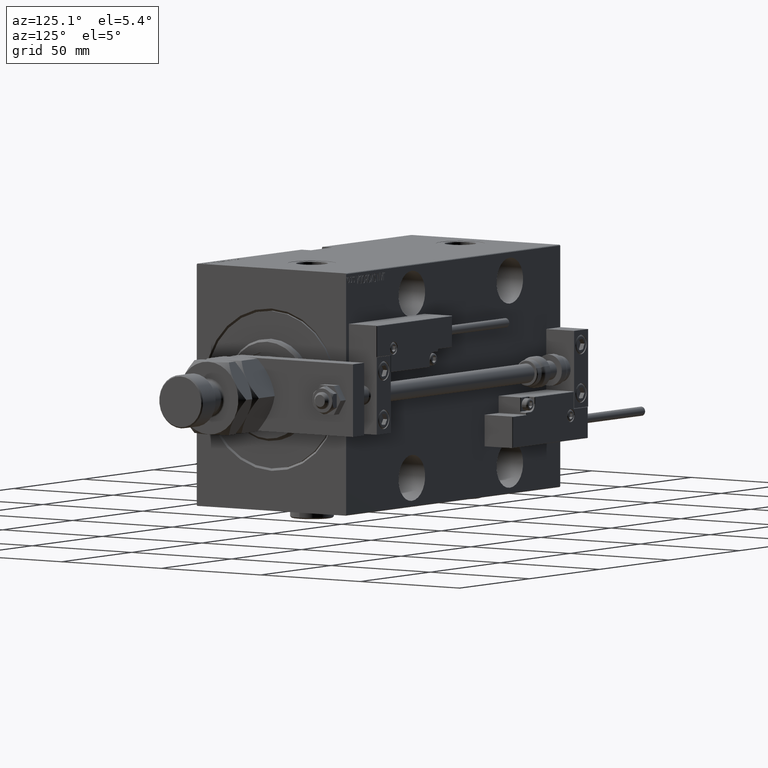
[diagram: clean part render]
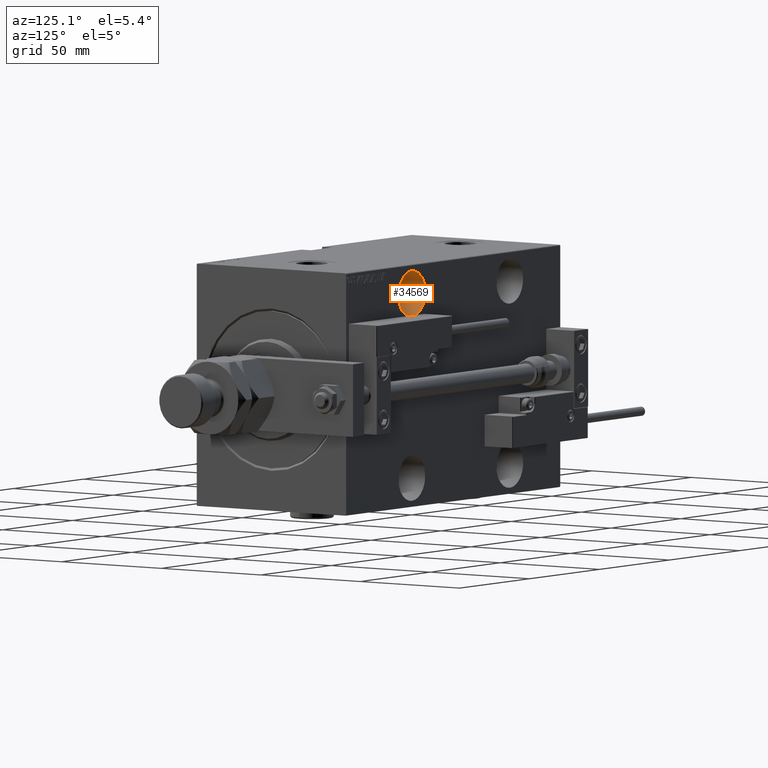
[diagram: same view with one face highlighted and labeled with its STEP entity id]
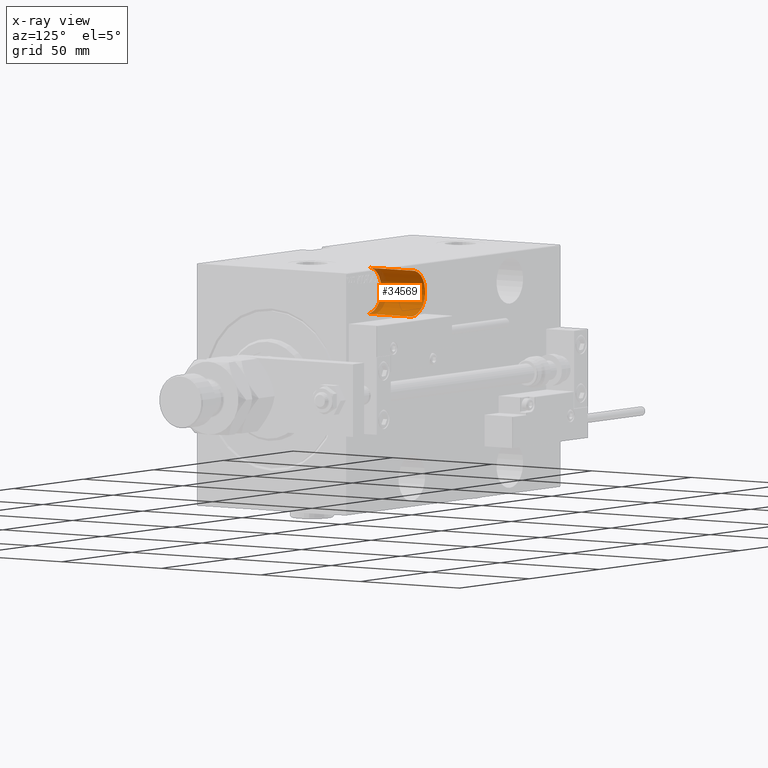
[diagram: x-ray of the same camera — body ghosted, the highlighted face saturated]
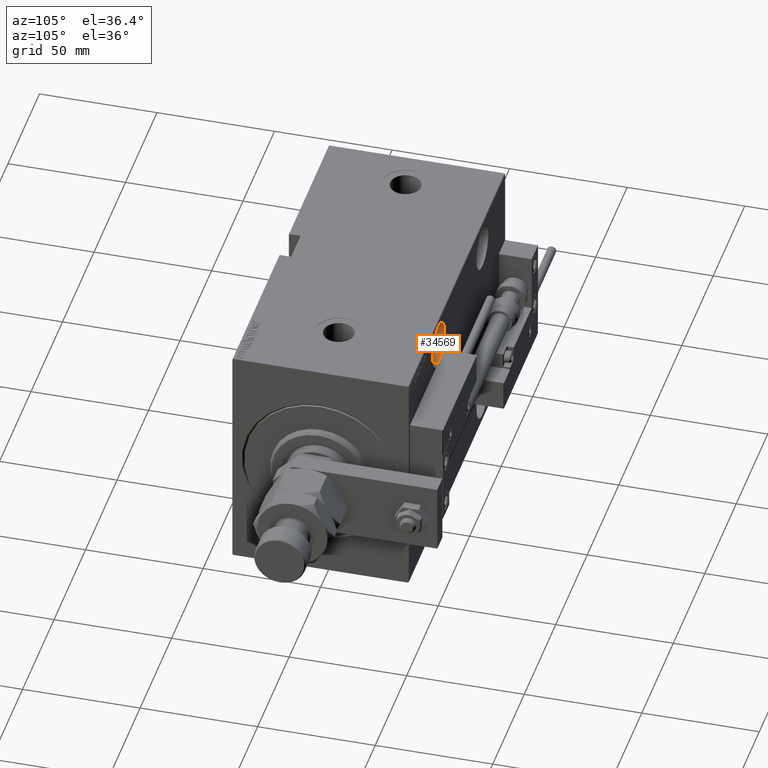
[diagram: same view with one face highlighted and labeled with its STEP entity id]
A machine part, auxiliary view. The second image highlights one B-rep face of the part: STEP entity #34569.
The next image is the same camera in x-ray: the body ghosted, the highlighted face saturated — about 13% of this face is hidden behind the body in this view.
A second angle (auxiliary view) of the same face is appended — the face is thin or edge-on in the first view.
In plain terms, the highlighted cylindrical surface (edge-blend (fillet) strip) has radius 9.5 mm, axis along (0, 1, -0).
Its self-contained STEP definition (entity closure, byte-faithful):
#4723 = ORIENTED_EDGE ( 'NONE', *, *, #15236, .F. ) ;
#4798 = AXIS2_PLACEMENT_3D ( 'NONE', #9735, #48704, #30082 ) ;
#5492 = ORIENTED_EDGE ( 'NONE', *, *, #13224, .T. ) ;
#7686 = CARTESIAN_POINT ( 'NONE',  ( 47.00000000000000000, -15.50000000000000000, 37.99999999999999289 ) ) ;
#8317 = ORIENTED_EDGE ( 'NONE', *, *, #39626, .T. ) ;
#9358 = DIRECTION ( 'NONE',  ( -0.000000000000000000, -1.000000000000000000, -0.000000000000000000 ) ) ;
#9735 = CARTESIAN_POINT ( 'NONE',  ( 47.00000000000000000, -15.50000000000000000, 37.99999999999999289 ) ) ;
#10375 = VERTEX_POINT ( 'NONE', #34892 ) ;
#10551 = CARTESIAN_POINT ( 'NONE',  ( 47.00000000000000000, -37.50000000000000000, 28.49999999999998934 ) ) ;
#13224 = EDGE_CURVE ( 'NONE', #43494, #38828, #38855, .T. ) ;
#13659 = CARTESIAN_POINT ( 'NONE',  ( 47.00000000000000000, -15.50000000000000000, 47.49999999999999289 ) ) ;
#15236 = EDGE_CURVE ( 'NONE', #31347, #38828, #46348, .T. ) ;
#15965 = ORIENTED_EDGE ( 'NONE', *, *, #24559, .F. ) ;
#15987 = DIRECTION ( 'NONE',  ( 0.000000000000000000, 0.000000000000000000, -1.000000000000000000 ) ) ;
#16773 = DIRECTION ( 'NONE',  ( 0.000000000000000000, -1.000000000000000000, 0.000000000000000000 ) ) ;
#17988 = EDGE_LOOP ( 'NONE', ( #4723, #15965, #8317, #5492 ) ) ;
#21741 = AXIS2_PLACEMENT_3D ( 'NONE', #38548, #38012, #47421 ) ;
#22738 = CIRCLE ( 'NONE', #35584, 9.500000000000001776 ) ;
#24559 = EDGE_CURVE ( 'NONE', #10375, #31347, #22738, .T. ) ;
#24562 = FACE_OUTER_BOUND ( 'NONE', #17988, .T. ) ;
#30082 = DIRECTION ( 'NONE',  ( 0.000000000000000000, 0.000000000000000000, -1.000000000000000000 ) ) ;
#31347 = VERTEX_POINT ( 'NONE', #40089 ) ;
#34107 = CYLINDRICAL_SURFACE ( 'NONE', #4798, 9.500000000000001776 ) ;
#34569 = ADVANCED_FACE ( 'NONE', ( #24562 ), #34107, .F. ) ;
#34892 = CARTESIAN_POINT ( 'NONE',  ( 47.00000000000000000, -15.50000000000000000, 28.49999999999998934 ) ) ;
#35584 = AXIS2_PLACEMENT_3D ( 'NONE', #7686, #16773, #15987 ) ;
#37183 = DIRECTION ( 'NONE',  ( -0.000000000000000000, -1.000000000000000000, -0.000000000000000000 ) ) ;
#38012 = DIRECTION ( 'NONE',  ( 0.000000000000000000, -1.000000000000000000, 0.000000000000000000 ) ) ;
#38548 = CARTESIAN_POINT ( 'NONE',  ( 47.00000000000000000, -37.50000000000000000, 37.99999999999999289 ) ) ;
#38828 = VERTEX_POINT ( 'NONE', #38890 ) ;
#38855 = CIRCLE ( 'NONE', #21741, 9.500000000000001776 ) ;
#38890 = CARTESIAN_POINT ( 'NONE',  ( 47.00000000000000000, -37.50000000000000000, 47.49999999999999289 ) ) ;
#39382 = VECTOR ( 'NONE', #37183, 1000.000000000000000 ) ;
#39626 = EDGE_CURVE ( 'NONE', #10375, #43494, #45247, .T. ) ;
#40089 = CARTESIAN_POINT ( 'NONE',  ( 47.00000000000000000, -15.50000000000000000, 47.49999999999999289 ) ) ;
#43494 = VERTEX_POINT ( 'NONE', #10551 ) ;
#43640 = VECTOR ( 'NONE', #9358, 1000.000000000000000 ) ;
#44719 = CARTESIAN_POINT ( 'NONE',  ( 47.00000000000000000, -15.50000000000000000, 28.49999999999998934 ) ) ;
#45247 = LINE ( 'NONE', #44719, #39382 ) ;
#46348 = LINE ( 'NONE', #13659, #43640 ) ;
#47421 = DIRECTION ( 'NONE',  ( 0.000000000000000000, 0.000000000000000000, -1.000000000000000000 ) ) ;
#48704 = DIRECTION ( 'NONE',  ( -0.000000000000000000, -1.000000000000000000, -0.000000000000000000 ) ) ;